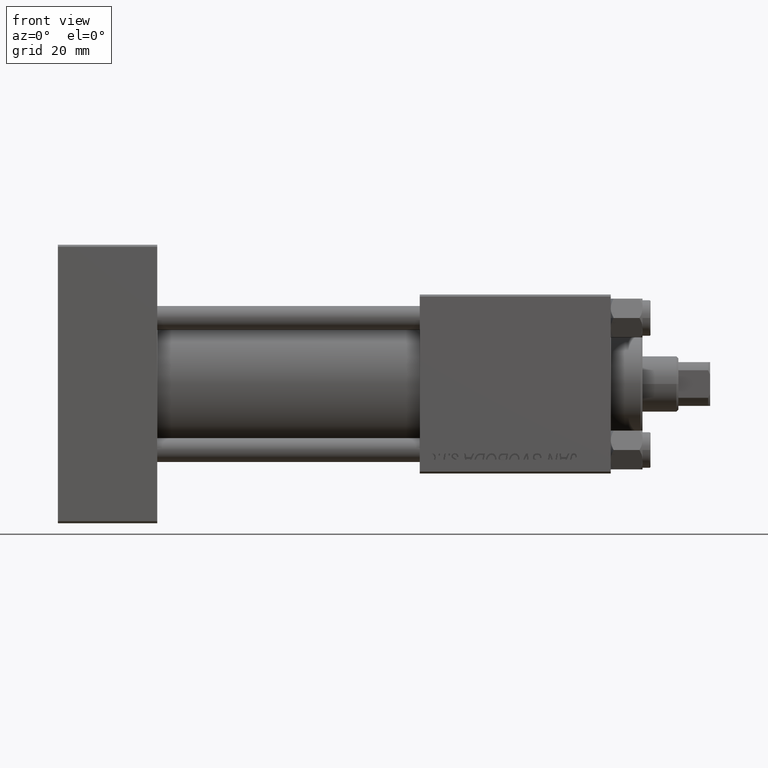
[diagram: clean part render]
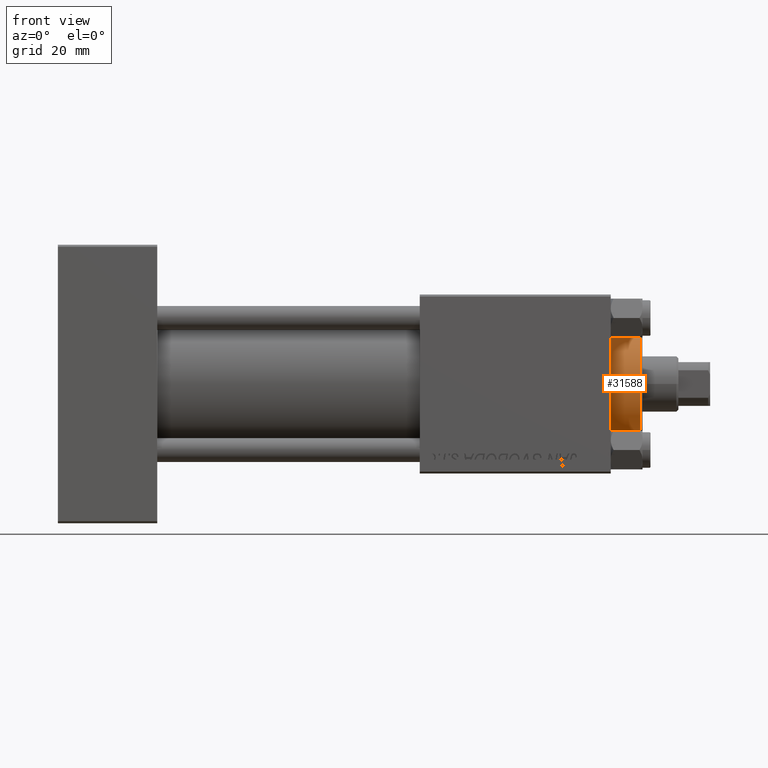
[diagram: same view with one face highlighted and labeled with its STEP entity id]
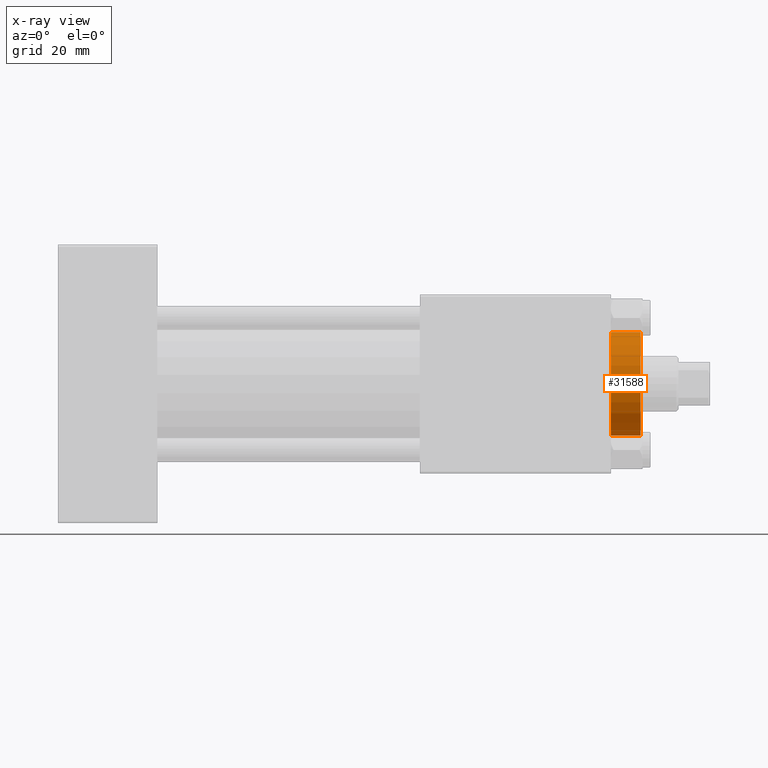
[diagram: x-ray of the same camera — body ghosted, the highlighted face saturated]
A machine part, front view. The second image highlights one B-rep face of the part: STEP entity #31588.
The next image is the same camera in x-ray: the body ghosted, the highlighted face saturated — about 0% of this face is hidden behind the body in this view.
In plain terms, the highlighted cylindrical surface (partial cylindrical patch) has radius 13 mm, axis along (-1, -0, 0).
Its self-contained STEP definition (entity closure, byte-faithful):
#239 = LINE ( 'NONE', #42943, #7351 ) ;
#488 = DIRECTION ( 'NONE',  ( 0.000000000000000000, 0.000000000000000000, 1.000000000000000000 ) ) ;
#939 = EDGE_CURVE ( 'NONE', #31045, #36857, #239, .T. ) ;
#1188 = VERTEX_POINT ( 'NONE', #15352 ) ;
#2310 = CIRCLE ( 'NONE', #28923, 13.00000000000000178 ) ;
#4165 = ORIENTED_EDGE ( 'NONE', *, *, #26831, .T. ) ;
#4798 = DIRECTION ( 'NONE',  ( -0.000000000000000000, -0.000000000000000000, -1.000000000000000000 ) ) ;
#5430 = VECTOR ( 'NONE', #35452, 1000.000000000000000 ) ;
#7351 = VECTOR ( 'NONE', #4798, 1000.000000000000000 ) ;
#8798 = ORIENTED_EDGE ( 'NONE', *, *, #29895, .T. ) ;
#9432 = CIRCLE ( 'NONE', #37650, 13.00000000000000178 ) ;
#10424 = EDGE_LOOP ( 'NONE', ( #15160, #49823, #4165, #8798 ) ) ;
#12202 = CARTESIAN_POINT ( 'NONE',  ( -13.00000000000000178, 0.000000000000000000, 36.20000000000000995 ) ) ;
#13240 = CYLINDRICAL_SURFACE ( 'NONE', #46640, 13.00000000000000178 ) ;
#13739 = FACE_OUTER_BOUND ( 'NONE', #10424, .T. ) ;
#14228 = CARTESIAN_POINT ( 'NONE',  ( 0.000000000000000000, 0.000000000000000000, 36.69999999999999574 ) ) ;
#15160 = ORIENTED_EDGE ( 'NONE', *, *, #939, .F. ) ;
#15352 = CARTESIAN_POINT ( 'NONE',  ( -13.00000000000000178, 0.000000000000000000, 28.69999999999999929 ) ) ;
#20778 = LINE ( 'NONE', #43280, #5430 ) ;
#22739 = CARTESIAN_POINT ( 'NONE',  ( 0.000000000000000000, 0.000000000000000000, 28.69999999999999929 ) ) ;
#26173 = EDGE_CURVE ( 'NONE', #31045, #36225, #9432, .T. ) ;
#26831 = EDGE_CURVE ( 'NONE', #36225, #1188, #20778, .T. ) ;
#28923 = AXIS2_PLACEMENT_3D ( 'NONE', #22739, #488, #30055 ) ;
#29895 = EDGE_CURVE ( 'NONE', #1188, #36857, #2310, .T. ) ;
#30055 = DIRECTION ( 'NONE',  ( 1.000000000000000000, 0.000000000000000000, 0.000000000000000000 ) ) ;
#31045 = VERTEX_POINT ( 'NONE', #46794 ) ;
#31588 = ADVANCED_FACE ( 'NONE', ( #13739 ), #13240, .T. ) ;
#35452 = DIRECTION ( 'NONE',  ( -0.000000000000000000, -0.000000000000000000, -1.000000000000000000 ) ) ;
#36225 = VERTEX_POINT ( 'NONE', #12202 ) ;
#36857 = VERTEX_POINT ( 'NONE', #49679 ) ;
#36964 = DIRECTION ( 'NONE',  ( -1.000000000000000000, 0.000000000000000000, 0.000000000000000000 ) ) ;
#37128 = DIRECTION ( 'NONE',  ( 0.000000000000000000, 0.000000000000000000, -1.000000000000000000 ) ) ;
#37650 = AXIS2_PLACEMENT_3D ( 'NONE', #47784, #37128, #48030 ) ;
#42943 = CARTESIAN_POINT ( 'NONE',  ( 13.00000000000000178, 1.592040838891559293E-15, 36.69999999999999574 ) ) ;
#43280 = CARTESIAN_POINT ( 'NONE',  ( -13.00000000000000178, 0.000000000000000000, 36.69999999999999574 ) ) ;
#45036 = DIRECTION ( 'NONE',  ( -0.000000000000000000, -0.000000000000000000, -1.000000000000000000 ) ) ;
#46640 = AXIS2_PLACEMENT_3D ( 'NONE', #14228, #45036, #36964 ) ;
#46794 = CARTESIAN_POINT ( 'NONE',  ( 13.00000000000000178, 1.592040838891559293E-15, 36.20000000000000995 ) ) ;
#47784 = CARTESIAN_POINT ( 'NONE',  ( 0.000000000000000000, 0.000000000000000000, 36.20000000000000995 ) ) ;
#48030 = DIRECTION ( 'NONE',  ( 1.000000000000000000, 0.000000000000000000, 0.000000000000000000 ) ) ;
#49679 = CARTESIAN_POINT ( 'NONE',  ( 13.00000000000000178, 1.592040838891559293E-15, 28.69999999999999929 ) ) ;
#49823 = ORIENTED_EDGE ( 'NONE', *, *, #26173, .T. ) ;